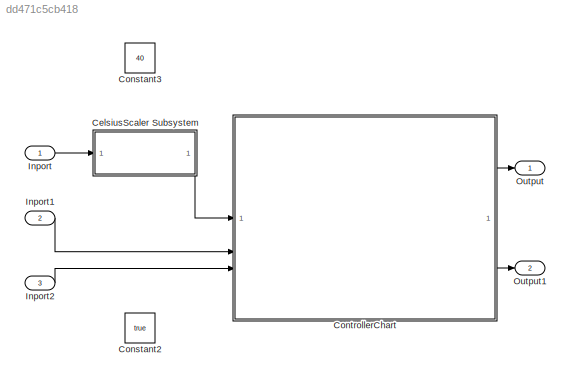
MODEL slx_dd471c5cb418
KIND model
CONFIG AbsTol = auto
CONFIG EnableMultiTasking = on
CONFIG FixedStep = 0.0001
CONFIG MaxStep = auto
CONFIG MinStep = auto
CONFIG RelTol = 1e-3
CONFIG SampleTimeConstraint = Unconstrained
CONFIG SolverName = FixedStepDiscrete
CONFIG StartTime = 0.0
CONFIG StopTime = 10.0
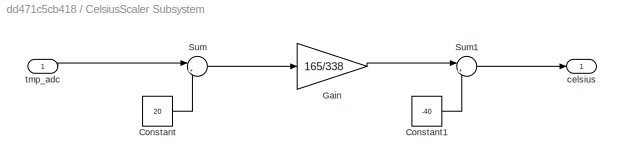
BLOCK [SubSystem] CelsiusScaler Subsystem
BLOCK [Constant] CelsiusScaler Subsystem/Constant
  Value = 20
BLOCK [Constant] CelsiusScaler Subsystem/Constant1
  Value = -40
BLOCK [Gain] CelsiusScaler Subsystem/Gain
  Gain = 165/338
BLOCK [Sum] CelsiusScaler Subsystem/Sum
  Inputs = |+-
BLOCK [Sum] CelsiusScaler Subsystem/Sum1
  Inputs = |++
BLOCK [Outport] CelsiusScaler Subsystem/celsius
BLOCK [Inport] CelsiusScaler Subsystem/tmp_adc
BLOCK [Constant] Constant2
  Value = true
BLOCK [Constant] Constant3
  Value = 40
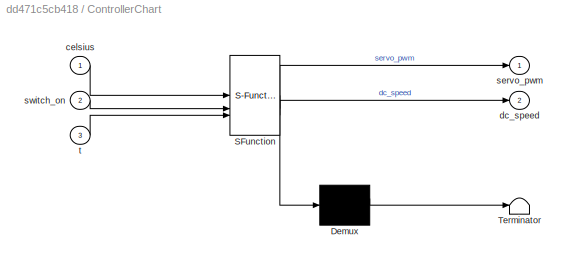
BLOCK [SubSystem] ControllerChart
  ErrorFcn = Stateflow.Translate.translate
  PermitHierarchicalResolution = ExplicitOnly
  SFBlockType = Chart
  TreatAsAtomicUnit = on
BLOCK [Demux] ControllerChart/ Demux 
  Outputs = 1
BLOCK [S-Function] ControllerChart/ SFunction 
  EnableBusSupport = on
  FunctionName = sf_sfun
  PortCounts = [3 3]
  SFcnIsStateOwnerBlock = off
  SFunctionDeploymentMode = off
  Tag = Stateflow S-Function 3
BLOCK [Terminator] ControllerChart/ Terminator 
BLOCK [Inport] ControllerChart/celsius
BLOCK [Outport] ControllerChart/dc_speed
  Port = 2
BLOCK [Outport] ControllerChart/servo_pwm
BLOCK [Inport] ControllerChart/switch_on
  Port = 2
BLOCK [Inport] ControllerChart/t
  Port = 3
BLOCK [Inport] Inport
BLOCK [Inport] Inport1
  Port = 2
BLOCK [Inport] Inport2
  Port = 3
BLOCK [Outport] Output
BLOCK [Outport] Output1
  Port = 2
LINE CelsiusScaler Subsystem/Constant1:1 -> CelsiusScaler Subsystem/Sum1:2
LINE CelsiusScaler Subsystem/Constant:1 -> CelsiusScaler Subsystem/Sum:2
LINE CelsiusScaler Subsystem/Gain:1 -> CelsiusScaler Subsystem/Sum1:1
LINE CelsiusScaler Subsystem/Sum1:1 -> CelsiusScaler Subsystem/celsius:1
LINE CelsiusScaler Subsystem/Sum:1 -> CelsiusScaler Subsystem/Gain:1
LINE CelsiusScaler Subsystem/tmp_adc:1 -> CelsiusScaler Subsystem/Sum:1
LINE CelsiusScaler Subsystem:1 -> ControllerChart:1
LINE ControllerChart:1 -> Output:1
LINE ControllerChart:2 -> Output1:1
LINE Inport1:1 -> ControllerChart:2
LINE Inport2:1 -> ControllerChart:3
LINE Inport:1 -> CelsiusScaler Subsystem:1
CHART ControllerChart states=9 transitions=13
  STATE_LABEL 'Servo_Motor'
  STATE_LABEL 'Pulse_High'
  STATE_LABEL 'Pulse_Down'
  STATE_LABEL 'Check_Direction'
  STATE_LABEL 'Check_Mode'
  STATE_LABEL '{servo_pwm = 1}'
  STATE_LABEL '[rem(t, servo_pw) == 0]{servo_pwm = 0}'
  STATE_LABEL '[servo_pw >= SERVO_MAX_PW]{servo_dir = -1}'
  STATE_LABEL '[servo_pw <= SERVO_MIN_PW]{servo_dir = 1}'
  STATE_LABEL '[rem(t, SERVO_PERIOD) == 0 && rem(t, JUMP * SERVO_PERIOD ) ~= 0]{servo_pwm = 1}'
  STATE_LABEL '[rem(t, SERVO_PERIOD) == 0 && rem(t, JUMP * SERVO_PERIOD) == 0]{servo_pwm = 1}'
  STATE_LABEL '[fast_mode == 1]{servo_pw = servo_pw + JUMP * servo_dir * 2 * (SERVO_MAX_PW - SERVO_MIN_PW) / (FAST_MODE_DURATION / SERVO_PERIOD)}'
  STATE_LABEL '[fast_mode == 1]{servo_pw = servo_pw + JUMP * servo_dir * 2 * (SERVO_MAX_PW - SERVO_MIN_PW) / (SLOW_MODE_DURATION / SERVO_PERIOD)}'
  STATE_LABEL 'Pulse_High'
  STATE_LABEL 'Pulse_Down'
  STATE_LABEL 'Check_Direction'
  STATE_LABEL 'Check_Mode'
  STATE_LABEL 'DC_Motor'
  STATE_LABEL 's2'
  STATE_LABEL '[rem(t,SENSOR_PERIOD)  == 0]{dc_speed = (celsius - 20) * DC_MAX_SPEED / (DC_MAX_RPM / 60) }'
  STATE_LABEL 's2'
  STATE_LABEL 'Switch'
  STATE_LABEL 's3'
  STATE_LABEL '[rem(t,SWITCH_PERIOD) == 0]{fast_mode = switch_on}'
  STATE_LABEL 's3'
CHART  states=0 transitions=0
